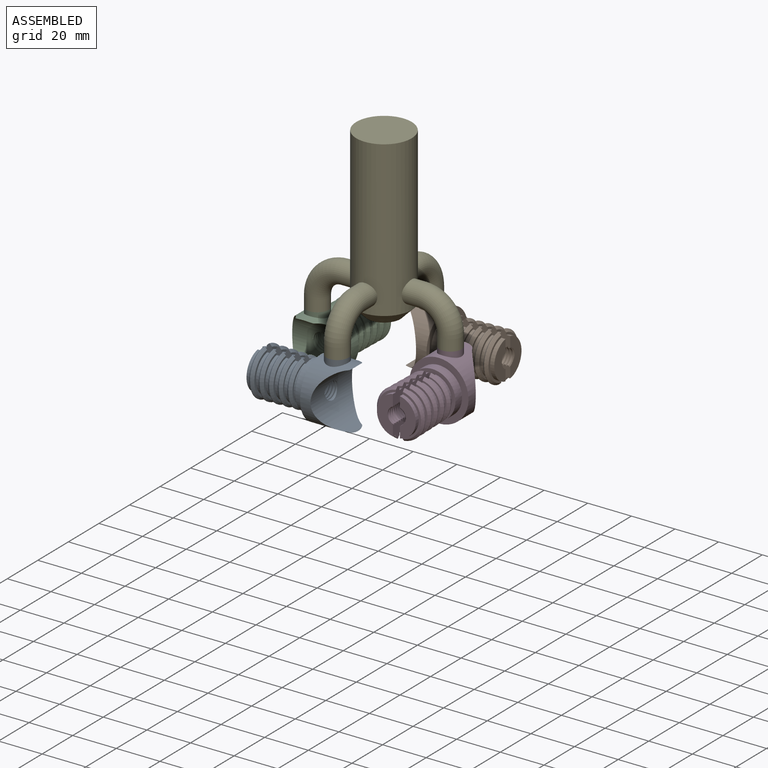
[diagram: assembled view]
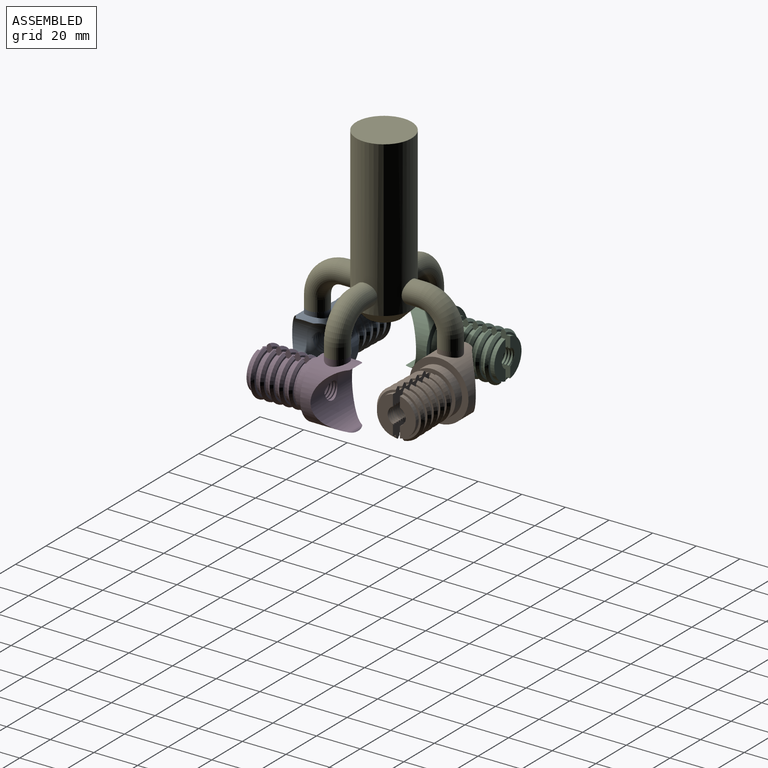
[diagram: assembled view, second angle]
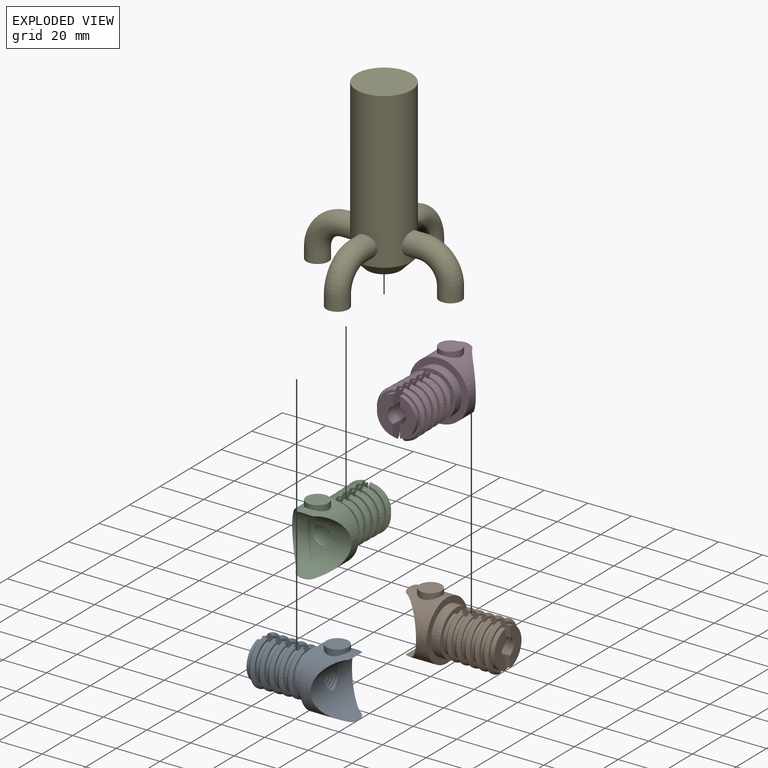
[diagram: exploded view]
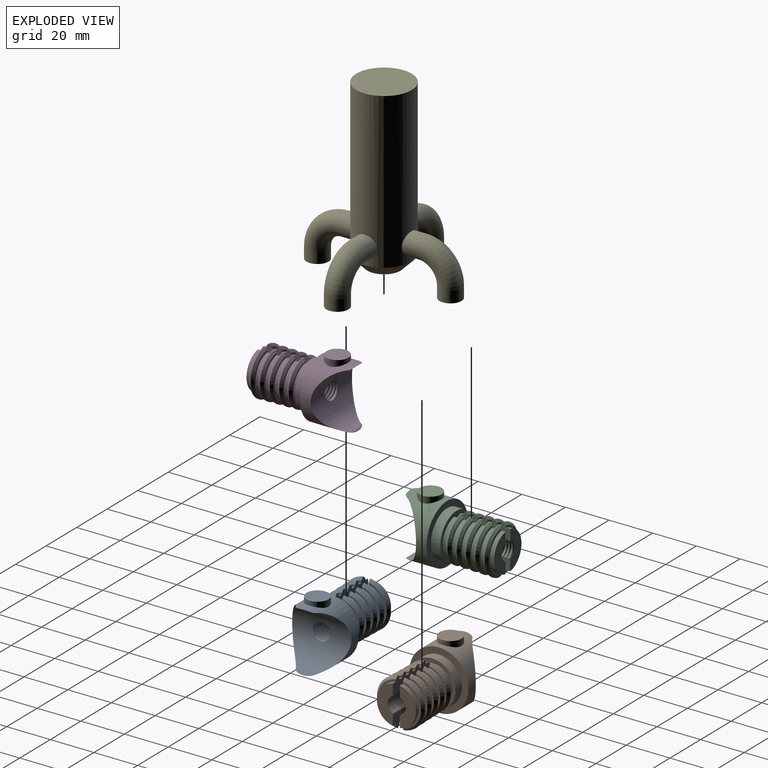
[diagram: exploded view, second angle]
ASSEMBLY  parts=5 mates=4
PART A: 215 faces, bbox 29.2x45.3x27.2 mm
  f0: cylinder r=13.59mm len=27.18mm, axis (0,1,0), area 777.8mm2, adj f166,f169,f170,f171,f213
  f1: cylinder r=3.97mm len=1.9mm, axis (0,-1,0), area 0.2mm2, adj f149,f150,f212
  f2: cylinder r=3.97mm len=7.28mm, axis (0,-1,0), area 7.9mm2, adj f100,f132,f210,f212
  f3: cylinder r=3.97mm len=7.28mm, axis (0,-1,0), area 7.9mm2, adj f99,f131,f210,f212
  f4: cylinder r=3.97mm len=7.28mm, axis (0,-1,0), area 7.9mm2, adj f98,f130,f210,f212
  f5: cylinder r=3.97mm len=7.28mm, axis (0,-1,0), area 7.9mm2, adj f97,f129,f210,f212
  f6: cylinder r=3.97mm len=7.28mm, axis (0,-1,0), area 7.9mm2, adj f96,f128,f210,f212
  f7: cylinder r=3.97mm len=7.28mm, axis (0,-1,0), area 7.9mm2, adj f95,f127,f210,f212
  f8: cylinder r=3.97mm len=7.28mm, axis (0,-1,0), area 7.9mm2, adj f94,f126,f210,f212
  f9: cylinder r=3.97mm len=7.28mm, axis (0,-1,0), area 7.9mm2, adj f93,f125,f210,f212
  f10: cylinder r=3.97mm len=7.28mm, axis (0,-1,0), area 7.9mm2, adj f92,f124,f210,f212
  f11: cylinder r=3.97mm len=7.28mm, axis (0,-1,0), area 7.9mm2, adj f91,f123,f210,f212
  f12: cylinder r=3.97mm len=7.28mm, axis (0,-1,0), area 7.9mm2, adj f90,f122,f210,f212
  f13: cylinder r=3.97mm len=7.28mm, axis (0,-1,0), area 7.9mm2, adj f89,f121,f210,f212
  f14: cylinder r=3.97mm len=7.28mm, axis (0,-1,0), area 7.9mm2, adj f88,f120,f210,f212
  f15: cylinder r=3.97mm len=7.28mm, axis (0,-1,0), area 7.9mm2, adj f87,f119,f210,f212
  f16: cylinder r=3.97mm len=7.28mm, axis (0,-1,0), area 7.9mm2, adj f86,f118,f210,f212
  f17: cylinder r=3.97mm len=7.28mm, axis (0,-1,0), area 7.9mm2, adj f85,f117,f210,f212
  f18: cylinder r=3.97mm len=7.28mm, axis (0,-1,0), area 7.9mm2, adj f101,f192,f209,f211
  f19: cylinder r=3.97mm len=10.43mm, axis (0,-1,0), area 141.3mm2, adj f84,f166,f173,f190,f191,f192,f210,f211
  f20: cylinder r=3.97mm len=7.28mm, axis (0,-1,0), area 7.9mm2, adj f102,f133,f209,f211
  f21: cylinder r=3.97mm len=7.28mm, axis (0,-1,0), area 7.9mm2, adj f103,f134,f209,f211
  f22: cylinder r=3.97mm len=7.28mm, axis (0,-1,0), area 7.9mm2, adj f104,f135,f209,f211
  f23: cylinder r=3.97mm len=7.28mm, axis (0,-1,0), area 7.9mm2, adj f105,f136,f209,f211
  f24: cylinder r=3.97mm len=7.28mm, axis (0,-1,0), area 7.9mm2, adj f106,f137,f209,f211
  f25: cylinder r=3.97mm len=7.28mm, axis (0,-1,0), area 7.9mm2, adj f107,f138,f209,f211
  f26: cylinder r=3.97mm len=7.28mm, axis (0,-1,0), area 7.9mm2, adj f108,f139,f209,f211
  f27: cylinder r=3.97mm len=7.28mm, axis (0,-1,0), area 7.9mm2, adj f109,f140,f209,f211
  f28: cylinder r=3.97mm len=7.28mm, axis (0,-1,0), area 7.9mm2, adj f110,f141,f209,f211
  f29: cylinder r=3.97mm len=7.28mm, axis (0,-1,0), area 7.9mm2, adj f111,f142,f209,f211
  f30: cylinder r=3.97mm len=7.28mm, axis (0,-1,0), area 7.9mm2, adj f112,f143,f209,f211
  f31: cylinder r=3.97mm len=7.28mm, axis (0,-1,0), area 7.9mm2, adj f113,f144,f209,f211
  f32: cylinder r=3.97mm len=7.28mm, axis (0,-1,0), area 7.9mm2, adj f114,f145,f209,f211
  f33: cylinder r=3.97mm len=7.28mm, axis (0,-1,0), area 7.9mm2, adj f115,f146,f209,f211
  f34: cylinder r=3.97mm len=7.28mm, axis (0,-1,0), area 7.9mm2, adj f116,f147,f209,f211
  f35: plane 18.96x8.03mm, normal (0,1,0), area 17.9mm2, adj f36,f165,f210,f212
  f36: cylinder r=8.92mm len=17.56mm, axis (0,-1,0), area 47.5mm2, adj f35,f173,f210,f212
  f37: plane 19.13x8.11mm, normal (0,1,0), area 20.2mm2, adj f39,f163,f210,f212
  f38: plane 18.98x8.03mm, normal (0,-1,0), area 18.1mm2, adj f39,f164,f210,f212
  f39: cylinder r=8.92mm len=17.56mm, axis (0,-1,0), area 47.5mm2, adj f37,f38,f210,f212
  f40: plane 19.3x8.19mm, normal (0,1,0), area 22.5mm2, adj f42,f161,f210,f212
  f41: plane 19.15x8.12mm, normal (0,-1,0), area 20.3mm2, adj f42,f162,f210,f212
  f42: cylinder r=8.92mm len=17.56mm, axis (0,-1,0), area 47.5mm2, adj f40,f41,f210,f212
  f43: plane 19.47x8.28mm, normal (0,1,0), area 24.8mm2, adj f45,f159,f210,f212
  f44: plane 19.32x8.2mm, normal (0,-1,0), area 22.6mm2, adj f45,f160,f210,f212
  f45: cylinder r=8.92mm len=17.56mm, axis (0,-1,0), area 47.5mm2, adj f43,f44,f210,f212
  f46: plane 19.64x8.36mm, normal (0,1,0), area 27.1mm2, adj f48,f156,f210,f212
  f47: plane 19.49x8.28mm, normal (0,-1,0), area 25mm2, adj f48,f158,f210,f212
  f48: cylinder r=8.92mm len=17.56mm, axis (0,-1,0), area 47.5mm2, adj f46,f47,f210,f212
  f49: plane 19.65x8.37mm, normal (0,-1,0), area 27.3mm2, adj f50,f157,f210,f212
  f50: cylinder r=8.92mm len=17.56mm, axis (0,-1,0), area 47.5mm2, adj f49,f150,f210,f212
  f51: cylinder r=4.45mm len=8.32mm, axis (0,-1,0), area 1.8mm2, adj f84,f117,f210,f212
  f52: cylinder r=4.45mm len=8.32mm, axis (0,-1,0), area 1.8mm2, adj f85,f118,f210,f212
  f53: cylinder r=4.45mm len=8.32mm, axis (0,-1,0), area 1.8mm2, adj f86,f119,f210,f212
  f54: cylinder r=4.45mm len=8.32mm, axis (0,-1,0), area 1.8mm2, adj f87,f120,f210,f212
  f55: cylinder r=4.45mm len=8.32mm, axis (0,-1,0), area 1.8mm2, adj f88,f121,f210,f212
  f56: cylinder r=4.45mm len=8.32mm, axis (0,-1,0), area 1.8mm2, adj f89,f122,f210,f212
  f57: cylinder r=4.45mm len=8.32mm, axis (0,-1,0), area 1.8mm2, adj f90,f123,f210,f212
  f58: cylinder r=4.45mm len=8.32mm, axis (0,-1,0), area 1.8mm2, adj f91,f124,f210,f212
  f59: cylinder r=4.45mm len=8.32mm, axis (0,-1,0), area 1.8mm2, adj f92,f125,f210,f212
  f60: cylinder r=4.45mm len=8.32mm, axis (0,-1,0), area 1.8mm2, adj f93,f126,f210,f212
  f61: cylinder r=4.45mm len=8.32mm, axis (0,-1,0), area 1.8mm2, adj f94,f127,f210,f212
  f62: cylinder r=4.45mm len=8.32mm, axis (0,-1,0), area 1.8mm2, adj f95,f128,f210,f212
  f63: cylinder r=4.45mm len=8.32mm, axis (0,-1,0), area 1.8mm2, adj f96,f129,f210,f212
  f64: cylinder r=4.45mm len=8.32mm, axis (0,-1,0), area 1.8mm2, adj f97,f130,f210,f212
  f65: cylinder r=4.45mm len=8.32mm, axis (0,-1,0), area 1.8mm2, adj f98,f131,f210,f212
  f66: cylinder r=4.45mm len=8.32mm, axis (0,-1,0), area 1.8mm2, adj f99,f132,f210,f212
  f67: cylinder r=4.45mm len=7.34mm, axis (0,-1,0), area 1.2mm2, adj f100,f149,f150,f212
  f68: cylinder r=4.45mm len=8.32mm, axis (0,-1,0), area 1.8mm2, adj f115,f147,f209,f211
  f69: cylinder r=4.45mm len=8.32mm, axis (0,-1,0), area 1.8mm2, adj f114,f146,f209,f211
  f70: cylinder r=4.45mm len=8.32mm, axis (0,-1,0), area 1.8mm2, adj f113,f145,f209,f211
  f71: cylinder r=4.45mm len=8.32mm, axis (0,-1,0), area 1.8mm2, adj f112,f144,f209,f211
  f72: cylinder r=4.45mm len=8.32mm, axis (0,-1,0), area 1.8mm2, adj f111,f143,f209,f211
  f73: cylinder r=4.45mm len=8.32mm, axis (0,-1,0), area 1.8mm2, adj f110,f142,f209,f211
  f74: cylinder r=4.45mm len=8.32mm, axis (0,-1,0), area 1.8mm2, adj f109,f141,f209,f211
  f75: cylinder r=4.45mm len=8.32mm, axis (0,-1,0), area 1.8mm2, adj f108,f140,f209,f211
  f76: cylinder r=4.45mm len=8.32mm, axis (0,-1,0), area 1.8mm2, adj f107,f139,f209,f211
  f77: cylinder r=4.45mm len=8.32mm, axis (0,-1,0), area 1.8mm2, adj f106,f138,f209,f211
  f78: cylinder r=4.45mm len=8.32mm, axis (0,-1,0), area 1.8mm2, adj f105,f137,f209,f211
  f79: cylinder r=4.45mm len=8.32mm, axis (0,-1,0), area 1.8mm2, adj f104,f136,f209,f211
  f80: cylinder r=4.45mm len=8.32mm, axis (0,-1,0), area 1.8mm2, adj f103,f135,f209,f211
  f81: cylinder r=4.45mm len=8.32mm, axis (0,-1,0), area 1.8mm2, adj f102,f134,f209,f211
  f82: cylinder r=4.45mm len=8.32mm, axis (0,-1,0), area 1.8mm2, adj f101,f133,f209,f211
  f83: cylinder r=4.45mm len=9.57mm, axis (0,-1,0), area 42.1mm2, adj f166,f190,f191,f192,f211
  f84: bspline ~10.28x6.68mm, area 5.5mm2, adj f19,f51,f210,f212
  f85: bspline ~10.28x6.68mm, area 5.5mm2, adj f17,f52,f210,f212
  f86: bspline ~10.28x6.68mm, area 5.5mm2, adj f16,f53,f210,f212
  f87: bspline ~10.28x6.68mm, area 5.5mm2, adj f15,f54,f210,f212
  f88: bspline ~10.28x6.68mm, area 5.5mm2, adj f14,f55,f210,f212
  f89: bspline ~10.28x6.68mm, area 5.5mm2, adj f13,f56,f210,f212
  f90: bspline ~10.28x6.68mm, area 5.5mm2, adj f12,f57,f210,f212
  f91: bspline ~10.28x6.68mm, area 5.5mm2, adj f11,f58,f210,f212
  f92: bspline ~10.28x6.68mm, area 5.5mm2, adj f10,f59,f210,f212
  f93: bspline ~10.28x6.68mm, area 5.5mm2, adj f9,f60,f210,f212
  f94: bspline ~10.28x6.68mm, area 5.5mm2, adj f8,f61,f210,f212
  f95: bspline ~10.28x6.68mm, area 5.5mm2, adj f7,f62,f210,f212
  f96: bspline ~10.28x6.68mm, area 5.5mm2, adj f6,f63,f210,f212
  f97: bspline ~10.28x6.68mm, area 5.5mm2, adj f5,f64,f210,f212
  f98: bspline ~10.28x6.68mm, area 5.5mm2, adj f4,f65,f210,f212
  f99: bspline ~10.28x6.68mm, area 5.5mm2, adj f3,f66,f210,f212
  f100: bspline ~10.28x6.68mm, area 5.3mm2, adj f2,f67,f150,f210,f212
  f101: bspline ~10.28x6.68mm, area 5.5mm2, adj f18,f82,f209,f211
  f102: bspline ~10.28x6.68mm, area 5.5mm2, adj f20,f81,f209,f211
  f103: bspline ~10.28x6.68mm, area 5.5mm2, adj f21,f80,f209,f211
  f104: bspline ~10.28x6.68mm, area 5.5mm2, adj f22,f79,f209,f211
  f105: bspline ~10.28x6.68mm, area 5.5mm2, adj f23,f78,f209,f211
  f106: bspline ~10.28x6.68mm, area 5.5mm2, adj f24,f77,f209,f211
  f107: bspline ~10.28x6.68mm, area 5.5mm2, adj f25,f76,f209,f211
  f108: bspline ~10.28x6.68mm, area 5.5mm2, adj f26,f75,f209,f211
  f109: bspline ~10.28x6.68mm, area 5.5mm2, adj f27,f74,f209,f211
  f110: bspline ~10.28x6.68mm, area 5.5mm2, adj f28,f73,f209,f211
  f111: bspline ~10.28x6.68mm, area 5.5mm2, adj f29,f72,f209,f211
  f112: bspline ~10.28x6.68mm, area 5.5mm2, adj f30,f71,f209,f211
  f113: bspline ~10.28x6.68mm, area 5.5mm2, adj f31,f70,f209,f211
  f114: bspline ~10.28x6.68mm, area 5.5mm2, adj f32,f69,f209,f211
  f115: bspline ~10.28x6.68mm, area 5.5mm2, adj f33,f68,f209,f211
  f116: bspline ~10.28x6.68mm, area 5.5mm2, adj f34,f189,f209,f211
  f117: bspline ~10.28x6.68mm, area 5mm2, adj f17,f51,f210,f212
  f118: bspline ~10.28x6.68mm, area 5mm2, adj f16,f52,f210,f212
  f119: bspline ~10.28x6.68mm, area 5mm2, adj f15,f53,f210,f212
  f120: bspline ~10.28x6.68mm, area 5mm2, adj f14,f54,f210,f212
  f121: bspline ~10.28x6.68mm, area 5mm2, adj f13,f55,f210,f212
  f122: bspline ~10.28x6.68mm, area 5mm2, adj f12,f56,f210,f212
  f123: bspline ~10.28x6.68mm, area 5mm2, adj f11,f57,f210,f212
  f124: bspline ~10.28x6.68mm, area 5mm2, adj f10,f58,f210,f212
  f125: bspline ~10.28x6.68mm, area 5mm2, adj f9,f59,f210,f212
  f126: bspline ~10.28x6.68mm, area 5mm2, adj f8,f60,f210,f212
  f127: bspline ~10.28x6.68mm, area 5mm2, adj f7,f61,f210,f212
  f128: bspline ~10.28x6.68mm, area 5mm2, adj f6,f62,f210,f212
  f129: bspline ~10.28x6.68mm, area 5mm2, adj f5,f63,f210,f212
  f130: bspline ~10.28x6.68mm, area 5mm2, adj f4,f64,f210,f212
  f131: bspline ~10.28x6.68mm, area 5mm2, adj f3,f65,f210,f212
  f132: bspline ~10.28x6.68mm, area 5mm2, adj f2,f66,f210,f212
  f133: bspline ~10.28x6.68mm, area 5mm2, adj f20,f82,f209,f211
  f134: bspline ~10.28x6.68mm, area 5mm2, adj f21,f81,f209,f211
  f135: bspline ~10.28x6.68mm, area 5mm2, adj f22,f80,f209,f211
  f136: bspline ~10.28x6.68mm, area 5mm2, adj f23,f79,f209,f211
  f137: bspline ~10.28x6.68mm, area 5mm2, adj f24,f78,f209,f211
  f138: bspline ~10.28x6.68mm, area 5mm2, adj f25,f77,f209,f211
  f139: bspline ~10.28x6.68mm, area 5mm2, adj f26,f76,f209,f211
  f140: bspline ~10.28x6.68mm, area 5mm2, adj f27,f75,f209,f211
  f141: bspline ~10.28x6.68mm, area 5mm2, adj f28,f74,f209,f211
  f142: bspline ~10.28x6.68mm, area 5mm2, adj f29,f73,f209,f211
  f143: bspline ~10.28x6.68mm, area 5mm2, adj f30,f72,f209,f211
  f144: bspline ~10.28x6.68mm, area 5mm2, adj f31,f71,f209,f211
  f145: bspline ~10.28x6.68mm, area 5mm2, adj f32,f70,f209,f211
  f146: bspline ~10.28x6.68mm, area 5mm2, adj f33,f69,f209,f211
  f147: bspline ~10.28x6.68mm, area 5mm2, adj f34,f68,f209,f211
  f148: bspline ~10.28x6.68mm, area 5mm2, adj f167,f189,f209,f211
  f149: bspline ~8.99x6.68mm, area 2.1mm2, adj f1,f67,f150,f212
  f150: plane 17.6x7.38mm, normal (0,-1,0), area 81.7mm2, adj f1,f50,f67,f100,f149,f210,f212
  f151: cone r=10.68mm half-angle=1.1deg, axis (0,-1,0), area 10.1mm2, adj f164,f165,f210,f212
  f152: cone r=11.01mm half-angle=1.1deg, axis (0,-1,0), area 10.4mm2, adj f156,f157,f210,f212
  f153: cone r=10.76mm half-angle=1.1deg, axis (0,-1,0), area 10.2mm2, adj f162,f163,f210,f212
  f154: cone r=10.84mm half-angle=1.1deg, axis (0,-1,0), area 10.3mm2, adj f160,f161,f210,f212
  f155: cone r=10.93mm half-angle=1.1deg, axis (0,-1,0), area 10.3mm2, adj f158,f159,f210,f212
  f156: cone r=9.95mm half-angle=45.6deg, axis (0,-1,0), area 43.1mm2, adj f46,f152,f210,f212
  f157: cone r=10.99mm half-angle=44.4deg, axis (0,1,0), area 43.9mm2, adj f49,f152,f210,f212
  f158: cone r=10.91mm half-angle=44.4deg, axis (0,1,0), area 43.6mm2, adj f47,f155,f210,f212
  f159: cone r=9.86mm half-angle=45.6deg, axis (0,-1,0), area 42.7mm2, adj f43,f155,f210,f212
  f160: cone r=10.82mm half-angle=44.4deg, axis (0,1,0), area 43.2mm2, adj f44,f154,f210,f212
  f161: cone r=9.78mm half-angle=45.6deg, axis (0,-1,0), area 42.3mm2, adj f40,f154,f210,f212
  f162: cone r=10.74mm half-angle=44.4deg, axis (0,1,0), area 42.8mm2, adj f41,f153,f210,f212
  f163: cone r=9.7mm half-angle=45.6deg, axis (0,-1,0), area 41.9mm2, adj f37,f153,f210,f212
  f164: cone r=10.66mm half-angle=44.4deg, axis (0,1,0), area 42.4mm2, adj f38,f151,f210,f212
  f165: cone r=9.61mm half-angle=45.6deg, axis (0,-1,0), area 41.5mm2, adj f35,f151,f210,f212
  f166: cylinder r=13.02mm len=27.18mm, axis (0,0,1), area 685.6mm2, adj f0,f19,f83,f170,f171,f190,f191
  f167: cylinder r=3.97mm len=7.28mm, axis (0,-1,0), area 5.5mm2, adj f148,f193,f209,f211
  f168: cylinder r=10.63mm len=21.26mm, axis (0,1,0), area 287.5mm2, adj f169,f173
  f169: plane 27.18x27.18mm, normal (0,-1,0), area 225.1mm2, adj f0,f168
  f170: cylinder r=2.54mm len=8.88mm, axis (0,0,1), area 10.8mm2, adj f0,f166
  f171: cylinder r=2.54mm len=8.88mm, axis (0,0,1), area 10.8mm2, adj f0,f166
  f172: plane 18.96x8.03mm, normal (0,1,0), area 17.9mm2, adj f174,f208,f209,f211
  f173: plane 21.27x21.27mm, normal (0,-1,0), area 136.5mm2, adj f19,f36,f168,f174,f192,f209,f210,f211
  f174: cylinder r=8.92mm len=17.56mm, axis (0,-1,0), area 47.5mm2, adj f172,f173,f209,f211
  f175: plane 19.13x8.11mm, normal (0,1,0), area 20.2mm2, adj f177,f206,f209,f211
  f176: plane 18.98x8.03mm, normal (0,-1,0), area 18.1mm2, adj f177,f207,f209,f211
  f177: cylinder r=8.92mm len=17.56mm, axis (0,-1,0), area 47.5mm2, adj f175,f176,f209,f211
  f178: plane 19.3x8.19mm, normal (0,1,0), area 22.5mm2, adj f180,f204,f209,f211
  f179: plane 19.15x8.12mm, normal (0,-1,0), area 20.3mm2, adj f180,f205,f209,f211
  f180: cylinder r=8.92mm len=17.56mm, axis (0,-1,0), area 47.5mm2, adj f178,f179,f209,f211
  f181: plane 19.47x8.28mm, normal (0,1,0), area 24.8mm2, adj f183,f202,f209,f211
  f182: plane 19.32x8.2mm, normal (0,-1,0), area 22.6mm2, adj f183,f203,f209,f211
  f183: cylinder r=8.92mm len=17.56mm, axis (0,-1,0), area 47.5mm2, adj f181,f182,f209,f211
  f184: plane 19.64x8.36mm, normal (0,1,0), area 27.1mm2, adj f186,f199,f209,f211
  f185: plane 19.49x8.28mm, normal (0,-1,0), area 25mm2, adj f186,f201,f209,f211
  f186: cylinder r=8.92mm len=17.56mm, axis (0,-1,0), area 47.5mm2, adj f184,f185,f209,f211
  f187: plane 19.65x8.37mm, normal (0,-1,0), area 27.3mm2, adj f188,f200,f209,f211
  f188: cylinder r=8.92mm len=17.56mm, axis (0,-1,0), area 47.5mm2, adj f187,f193,f209,f211
  f189: cylinder r=4.45mm len=8.32mm, axis (0,-1,0), area 1.8mm2, adj f116,f148,f209,f211
  f190: plane 0.48x0.23mm, normal (1,0,0), area 0.1mm2, adj f19,f83,f166,f192
  f191: bspline ~10.28x9.92mm, area 96.1mm2, adj f19,f83,f166,f211
  f192: bspline ~10.28x9.78mm, area 88.2mm2, adj f18,f19,f83,f173,f190,f209,f211
  f193: plane 17.56x7.34mm, normal (0,-1,0), area 84.4mm2, adj f167,f188,f209,f211
  f194: cone r=10.68mm half-angle=1.1deg, axis (0,-1,0), area 10.1mm2, adj f207,f208,f209,f211
  f195: cone r=11.01mm half-angle=1.1deg, axis (0,-1,0), area 10.4mm2, adj f199,f200,f209,f211
  f196: cone r=10.76mm half-angle=1.1deg, axis (0,-1,0), area 10.2mm2, adj f205,f206,f209,f211
  f197: cone r=10.84mm half-angle=1.1deg, axis (0,-1,0), area 10.3mm2, adj f203,f204,f209,f211
  f198: cone r=10.93mm half-angle=1.1deg, axis (0,-1,0), area 10.3mm2, adj f201,f202,f209,f211
  f199: cone r=9.95mm half-angle=45.6deg, axis (0,-1,0), area 43.1mm2, adj f184,f195,f209,f211
  f200: cone r=10.99mm half-angle=44.4deg, axis (0,1,0), area 43.9mm2, adj f187,f195,f209,f211
  f201: cone r=10.91mm half-angle=44.4deg, axis (0,1,0), area 43.6mm2, adj f185,f198,f209,f211
  f202: cone r=9.86mm half-angle=45.6deg, axis (0,-1,0), area 42.7mm2, adj f181,f198,f209,f211
  f203: cone r=10.82mm half-angle=44.4deg, axis (0,1,0), area 43.2mm2, adj f182,f197,f209,f211
  f204: cone r=9.78mm half-angle=45.6deg, axis (0,-1,0), area 42.3mm2, adj f178,f197,f209,f211
  f205: cone r=10.74mm half-angle=44.4deg, axis (0,1,0), area 42.8mm2, adj f179,f196,f209,f211
  f206: cone r=9.7mm half-angle=45.6deg, axis (0,-1,0), area 41.9mm2, adj f175,f196,f209,f211
  f207: cone r=10.66mm half-angle=44.4deg, axis (0,1,0), area 42.4mm2, adj f176,f194,f209,f211
  f208: cone r=9.61mm half-angle=45.6deg, axis (0,-1,0), area 41.5mm2, adj f172,f194,f209,f211
  f209: plane 23.52x7.25mm, normal (0,0,-1), area 135.6mm2, adj f18,f20,f21,f22,f23,f24,f25,f26
  f210: plane 23.52x7.25mm, normal (0,0,1), area 135.5mm2, adj f2,f3,f4,f5,f6,f7,f8,f9
  f211: plane 23.52x7.25mm, normal (0,0,-1), area 135.4mm2, adj f18,f19,f20,f21,f22,f23,f24,f25
  f212: plane 23.52x7.25mm, normal (0,0,1), area 135.4mm2, adj f1,f2,f3,f4,f5,f6,f7,f8
  f213: cylinder r=5.08mm len=10.16mm, axis (-1,0,0), area 79.4mm2, adj f0,f214
  f214: plane 10.16x10.16mm, normal (1,0,0), area 81.1mm2, adj f213
PART B: same geometry as A
PART C: same geometry as A
PART D: same geometry as A
PART E: 20 faces, bbox 74.1x74.1x81.3 mm
  f0: cylinder r=12.7mm len=71.12mm, axis (0,0,1), area 5344.3mm2, adj f2,f3,f5,f11,f15,f17
  f1: plane 15.24x15.24mm, normal (0,0,-1), area 182.4mm2, adj f3
  f2: plane 25.4x25.4mm, normal (0,0,1), area 506.7mm2, adj f0
  f3: cone r=12.7mm half-angle=45deg, axis (0,0,1), area 458.6mm2, adj f0,f1
  f4: plane 10.16x10.16mm, normal (0,0,-1), area 81.1mm2, adj f7
  f5: cylinder r=5.08mm len=10.16mm, axis (0,-1,0), area 178.9mm2, adj f0,f6
  f6: torus R=12.7mm, axis (1,0,0), area 636.7mm2, adj f5,f7
  f7: cylinder r=5.08mm len=10.16mm, axis (0,0,-1), area 162.1mm2, adj f4,f6
  f8: plane 10.16x10.16mm, normal (0,0,-1), area 81.1mm2, adj f9
  f9: cylinder r=5.08mm len=10.16mm, axis (0,0,-1), area 162.1mm2, adj f8,f10
  f10: torus R=12.7mm, axis (0,1,0), area 636.7mm2, adj f9,f11
  f11: cylinder r=5.08mm len=10.16mm, axis (1,0,0), area 178.9mm2, adj f0,f10
  f12: plane 10.16x10.16mm, normal (0,0,-1), area 81.1mm2, adj f13
  f13: cylinder r=5.08mm len=10.16mm, axis (0,0,-1), area 162.1mm2, adj f12,f14
  f14: torus R=12.7mm, axis (-1,0,0), area 636.7mm2, adj f13,f15
  f15: cylinder r=5.08mm len=10.16mm, axis (0,1,0), area 178.9mm2, adj f0,f14
  f16: plane 10.16x10.16mm, normal (0,0,-1), area 81.1mm2, adj f19
  f17: cylinder r=5.08mm len=10.16mm, axis (-1,0,0), area 178.9mm2, adj f0,f18
  f18: torus R=12.7mm, axis (0,-1,0), area 636.7mm2, adj f17,f19
  f19: cylinder r=5.08mm len=10.16mm, axis (0,0,-1), area 162.1mm2, adj f16,f18
PLACE A rot(axis=(-0.58,-0.58,-0.58),120deg) t=(-16.13,-31.95,-42.52)mm
PLACE B rot(axis=(0.58,-0.58,0.58),120deg) t=(-36.45,29.01,-42.52)mm
PLACE C rot(axis=(0.71,0,0.71),180deg) t=(-56.77,-11.63,-42.52)mm
PLACE D rot(axis=(0,-1,0),90deg) t=(4.19,8.69,-42.52)mm
PLACE E t=(-26.29,-1.47,16.26)mm
MATE fastened C.f213 <-> E.f19  axis (0,0,1) through (-56.77,-1.47,-26.92)mm
MATE fastened B.f213 <-> E.f13  axis (0,0,1) through (-26.29,29.01,-26.92)mm
MATE fastened D.f213 <-> E.f9  axis (0,0,1) through (4.19,-1.47,-26.92)mm
MATE fastened A.f213 <-> E.f7  axis (0,0,1) through (-26.29,-31.95,-26.92)mm
